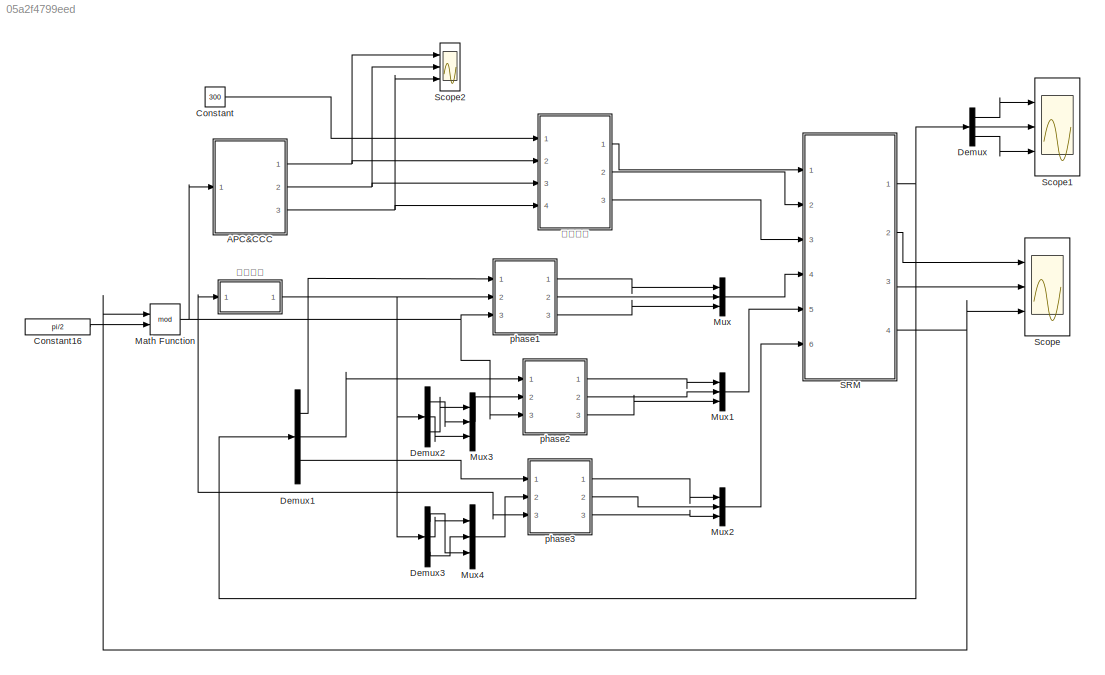
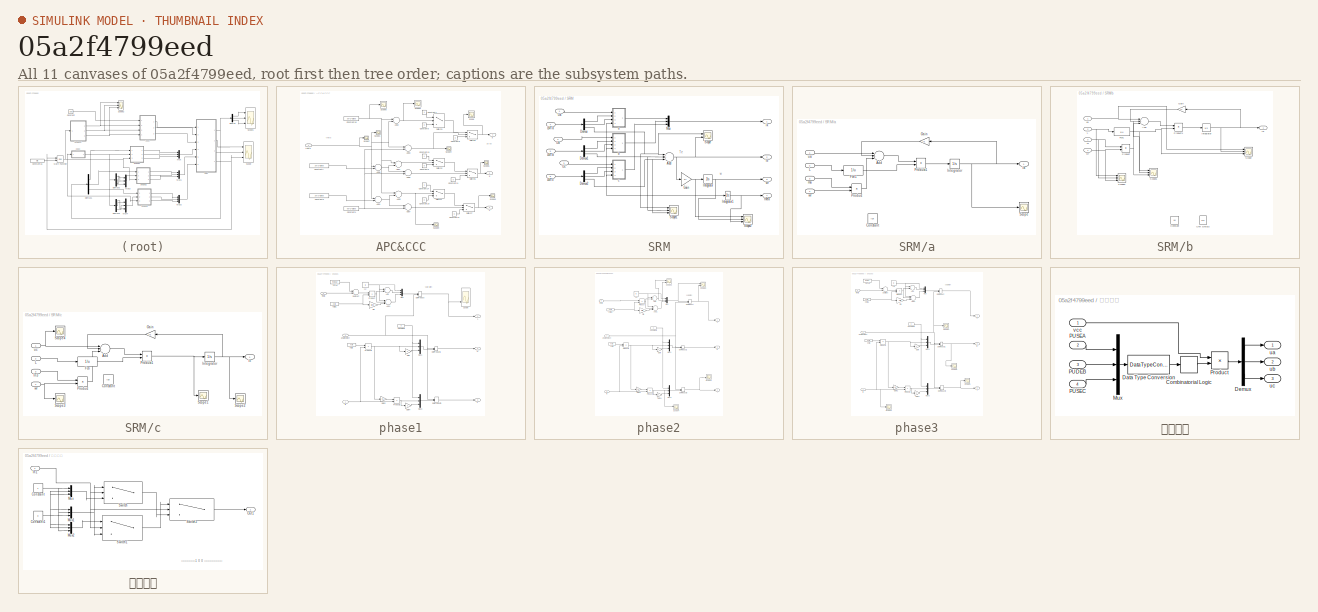
[diagram: thumbnail index - all 11 canvases of the model, root first then tree order]
MODEL slx_05a2f4799eed
KIND model
CONFIG InitFcn = theta0=30*2*pi/360;\nks=1.22;\nis=2;\nlu=0.016;\nrs=1.5;\nlux=1;\nj=0.01;
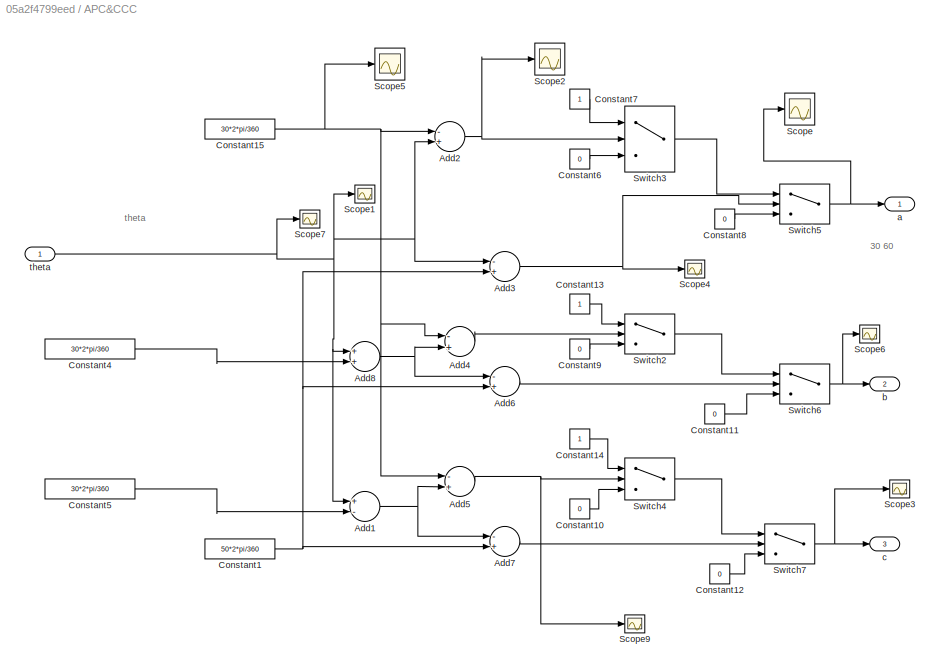
BLOCK [SubSystem] APC&CCC
  FunctionWithSeparateData = off
  MaskHideContents = off
  MinAlgLoopOccurrences = off
  Opaque = off
  Ports = [1, 3]
  PropExecContextOutsideSubsystem = off
  RTWSystemCode = Auto
  RequestExecContextInheritance = off
BLOCK [Sum] APC&CCC/Add1
  InputSameDT = off
  Inputs = +-
  OutDataTypeStr = Inherit: Inherit via internal rule
  Ports = [2, 1]
  SaturateOnIntegerOverflow = off
BLOCK [Sum] APC&CCC/Add2
  InputSameDT = off
  Inputs = -+
  OutDataTypeStr = Inherit: Inherit via internal rule
  Ports = [2, 1]
  SaturateOnIntegerOverflow = off
BLOCK [Sum] APC&CCC/Add3
  InputSameDT = off
  Inputs = -+
  OutDataTypeStr = Inherit: Inherit via internal rule
  Ports = [2, 1]
  SaturateOnIntegerOverflow = off
BLOCK [Sum] APC&CCC/Add4
  InputSameDT = off
  Inputs = -+
  OutDataTypeStr = Inherit: Inherit via internal rule
  Ports = [2, 1]
  SaturateOnIntegerOverflow = off
BLOCK [Sum] APC&CCC/Add5
  InputSameDT = off
  Inputs = -+
  OutDataTypeStr = Inherit: Inherit via internal rule
  Ports = [2, 1]
  SaturateOnIntegerOverflow = off
BLOCK [Sum] APC&CCC/Add6
  InputSameDT = off
  Inputs = -+
  OutDataTypeStr = Inherit: Inherit via internal rule
  Ports = [2, 1]
  SaturateOnIntegerOverflow = off
BLOCK [Sum] APC&CCC/Add7
  InputSameDT = off
  Inputs = -+
  OutDataTypeStr = Inherit: Inherit via internal rule
  Ports = [2, 1]
  SaturateOnIntegerOverflow = off
BLOCK [Sum] APC&CCC/Add8
  InputSameDT = off
  OutDataTypeStr = Inherit: Inherit via internal rule
  Ports = [2, 1]
  SaturateOnIntegerOverflow = off
BLOCK [Constant] APC&CCC/Constant1
  Value = 50*2*pi/360
BLOCK [Constant] APC&CCC/Constant10
  Value = 0
BLOCK [Constant] APC&CCC/Constant11
  Value = 0
BLOCK [Constant] APC&CCC/Constant12
  Value = 0
BLOCK [Constant] APC&CCC/Constant13
BLOCK [Constant] APC&CCC/Constant14
BLOCK [Constant] APC&CCC/Constant15
  Value = 30*2*pi/360
BLOCK [Constant] APC&CCC/Constant4
  Value = 30*2*pi/360
BLOCK [Constant] APC&CCC/Constant5
  Value = 30*2*pi/360
BLOCK [Constant] APC&CCC/Constant6
  Value = 0
BLOCK [Constant] APC&CCC/Constant7
BLOCK [Constant] APC&CCC/Constant8
  Value = 0
BLOCK [Constant] APC&CCC/Constant9
  Value = 0
BLOCK [Scope] APC&CCC/Scope
  DataFormat = StructureWithTime
  Floating = off
  NumInputPorts = 1
  Ports = [1]
  SampleTime = 0
  SaveName = ScopeData3
  ShowLegends = off
  TimeRange = 2
  YMax = 1
  YMin = -1
BLOCK [Scope] APC&CCC/Scope1
  DataFormat = StructureWithTime
  Floating = off
  NumInputPorts = 1
  Ports = [1]
  SampleTime = 0
  SaveName = ScopeData5
  ShowLegends = off
BLOCK [Scope] APC&CCC/Scope2
  DataFormat = StructureWithTime
  Floating = off
  NumInputPorts = 1
  Ports = [1]
  SampleTime = 0
  SaveName = ScopeData7
  ShowLegends = off
  TimeRange = 2
  YMax = 1
  YMin = -1
BLOCK [Scope] APC&CCC/Scope3
  DataFormat = StructureWithTime
  Floating = off
  NumInputPorts = 1
  Ports = [1]
  SampleTime = 0
  SaveName = ScopeData8
  ShowLegends = off
BLOCK [Scope] APC&CCC/Scope4
  DataFormat = StructureWithTime
  Floating = off
  NumInputPorts = 1
  Ports = [1]
  SampleTime = 0
  SaveName = ScopeData9
  ShowLegends = off
BLOCK [Scope] APC&CCC/Scope5
  DataFormat = StructureWithTime
  Floating = off
  NumInputPorts = 1
  Ports = [1]
  SampleTime = 0
  SaveName = ScopeData10
  ShowLegends = off
  TimeRange = 2
  YMax = 1
  YMin = -1
BLOCK [Scope] APC&CCC/Scope6
  DataFormat = StructureWithTime
  Floating = off
  LimitDataPoints = off
  NumInputPorts = 1
  Ports = [1]
  SampleTime = 0
  SaveName = ScopeData11
  ShowLegends = off
BLOCK [Scope] APC&CCC/Scope7
  DataFormat = StructureWithTime
  Floating = off
  LimitDataPoints = off
  NumInputPorts = 1
  Ports = [1]
  SampleTime = 0
  SaveName = ScopeData19
  ShowLegends = off
  YMax = 0.85
  YMin = 0.2
  ZoomMode = xonly
BLOCK [Scope] APC&CCC/Scope9
  DataFormat = StructureWithTime
  Floating = off
  LimitDataPoints = off
  NumInputPorts = 1
  Ports = [1]
  SampleTime = 0
  SaveName = ScopeData21
  ShowLegends = off
  YMax = 0.85
  YMin = 0.2
BLOCK [Switch] APC&CCC/Switch2
  InputSameDT = off
  SaturateOnIntegerOverflow = off
BLOCK [Switch] APC&CCC/Switch3
  InputSameDT = off
  SaturateOnIntegerOverflow = off
BLOCK [Switch] APC&CCC/Switch4
  InputSameDT = off
  SaturateOnIntegerOverflow = off
BLOCK [Switch] APC&CCC/Switch5
  InputSameDT = off
  SaturateOnIntegerOverflow = off
BLOCK [Switch] APC&CCC/Switch6
  InputSameDT = off
  SaturateOnIntegerOverflow = off
BLOCK [Switch] APC&CCC/Switch7
  InputSameDT = off
  SaturateOnIntegerOverflow = off
BLOCK [Outport] APC&CCC/a
  IconDisplay = Port number
BLOCK [Outport] APC&CCC/b
  IconDisplay = Port number
  Port = 2
BLOCK [Outport] APC&CCC/c
  IconDisplay = Port number
  Port = 3
BLOCK [Inport] APC&CCC/theta
  IconDisplay = Port number
BLOCK [Constant] Constant
  Value = 300
BLOCK [Constant] Constant16
  Value = pi/2
BLOCK [Demux] Demux
  DisplayOption = bar
  Outputs = 3
  Ports = [1, 3]
BLOCK [Demux] Demux1
  DisplayOption = bar
  Outputs = 3
  Ports = [1, 3]
BLOCK [Demux] Demux2
  DisplayOption = bar
  Outputs = 3
  Ports = [1, 3]
BLOCK [Demux] Demux3
  DisplayOption = bar
  Outputs = 3
  Ports = [1, 3]
BLOCK [Math] Math Function
  Operator = mod
  Ports = [2, 1]
BLOCK [Mux] Mux
  DisplayOption = bar
  Inputs = 3
  Ports = [3, 1]
BLOCK [Mux] Mux1
  DisplayOption = bar
  Inputs = 3
  Ports = [3, 1]
BLOCK [Mux] Mux2
  DisplayOption = bar
  Inputs = 3
  Ports = [3, 1]
BLOCK [Mux] Mux3
  DisplayOption = bar
  Inputs = 3
  Ports = [3, 1]
BLOCK [Mux] Mux4
  DisplayOption = bar
  Inputs = 3
  Ports = [3, 1]
BLOCK [SubSystem] SRM
  FunctionWithSeparateData = off
  MaskHideContents = off
  MinAlgLoopOccurrences = off
  Opaque = off
  Ports = [6, 4]
  PropExecContextOutsideSubsystem = off
  RTWSystemCode = Auto
  RequestExecContextInheritance = off
BLOCK [Sum] SRM/Add
  InputSameDT = off
  Inputs = +++
  OutDataTypeStr = Inherit: Inherit via internal rule
  Ports = [3, 1]
  SaturateOnIntegerOverflow = off
BLOCK [Demux] SRM/Demux
  DisplayOption = bar
  Outputs = 3
  Ports = [1, 3]
BLOCK [Demux] SRM/Demux1
  DisplayOption = bar
  Outputs = 3
  Ports = [1, 3]
BLOCK [Demux] SRM/Demux2
  DisplayOption = bar
  Outputs = 3
  Ports = [1, 3]
BLOCK [Gain] SRM/Gain
  Gain = 1/j
  OutDataTypeStr = Inherit: Inherit via internal rule
  ParamDataTypeStr = Inherit: Inherit via internal rule
  SaturateOnIntegerOverflow = off
BLOCK [Integrator] SRM/Integrator
  Ports = [1, 1]
BLOCK [Integrator] SRM/Integrator1
  InitialCondition = 5*2*pi/360
  Ports = [1, 1]
BLOCK [Inport] SRM/LMTa
  IconDisplay = Port number
  Port = 4
BLOCK [Inport] SRM/LMTb
  IconDisplay = Port number
  Port = 5
BLOCK [Inport] SRM/LMTc
  IconDisplay = Port number
  Port = 6
BLOCK [Mux] SRM/Mux
  DisplayOption = bar
  Inputs = 3
  Ports = [3, 1]
BLOCK [Scope] SRM/Scope
  DataFormat = StructureWithTime
  Floating = off
  NumInputPorts = 2
  Ports = [2]
  SampleTime = 0
  ShowLegends = off
  YMax = 5~5
  YMin = -5~-5
BLOCK [Scope] SRM/Scope1
  DataFormat = StructureWithTime
  Floating = off
  NumInputPorts = 3
  Ports = [3]
  SampleTime = 0
  SaveName = ScopeData22
  ShowLegends = off
  YMax = 5~5~5
  YMin = -5~-5~-5
BLOCK [Scope] SRM/Scope2
  DataFormat = StructureWithTime
  Floating = off
  LimitDataPoints = off
  NumInputPorts = 3
  Ports = [3]
  SampleTime = 0
  SaveName = ScopeData29
  ShowLegends = off
  YMax = 5~5~5
  YMin = -5~-5~-5
BLOCK [Inport] SRM/Ua
  IconDisplay = Port number
BLOCK [Inport] SRM/Ub
  IconDisplay = Port number
  Port = 2
BLOCK [Inport] SRM/Uc
  IconDisplay = Port number
  Port = 3
BLOCK [SubSystem] SRM/a
  FunctionWithSeparateData = off
  MaskHideContents = off
  MinAlgLoopOccurrences = off
  Opaque = off
  Ports = [4, 1]
  PropExecContextOutsideSubsystem = off
  RTWSystemCode = Auto
  RequestExecContextInheritance = off
BLOCK [Sum] SRM/a/Add
  InputSameDT = off
  Inputs = +--
  OutDataTypeStr = Inherit: Inherit via internal rule
  Ports = [3, 1]
  SaturateOnIntegerOverflow = off
BLOCK [Constant] SRM/a/Constant
  Value = lux
BLOCK [Fcn] SRM/a/Fcn1
  Expr = 1/u
BLOCK [Gain] SRM/a/Gain
  Gain = rs
  OutDataTypeStr = Inherit: Inherit via internal rule
  ParamDataTypeStr = Inherit: Inherit via internal rule
  SaturateOnIntegerOverflow = off
BLOCK [Integrator] SRM/a/Integrator
  Ports = [1, 1]
BLOCK [Inport] SRM/a/L 
  IconDisplay = Port number
  Port = 2
BLOCK [Product] SRM/a/Product
  InputSameDT = off
  OutDataTypeStr = Inherit: Inherit via internal rule
  Ports = [2, 1]
  RndMeth = Floor
  SaturateOnIntegerOverflow = off
BLOCK [Product] SRM/a/Product1
  InputSameDT = off
  OutDataTypeStr = Inherit: Inherit via internal rule
  Ports = [2, 1]
  RndMeth = Floor
  SaturateOnIntegerOverflow = off
BLOCK [Scope] SRM/a/Scope
  DataFormat = StructureWithTime
  Floating = off
  NumInputPorts = 1
  Ports = [1]
  SampleTime = 0
  SaveName = ScopeData2
  ShowLegends = off
BLOCK [Outport] SRM/a/ia
  IconDisplay = Port number
BLOCK [Inport] SRM/a/ma
  IconDisplay = Port number
  Port = 3
BLOCK [Inport] SRM/a/ua
  IconDisplay = Port number
BLOCK [Inport] SRM/a/wr
  IconDisplay = Port number
  Port = 4
BLOCK [SubSystem] SRM/b
  FunctionWithSeparateData = off
  MaskHideContents = off
  MinAlgLoopOccurrences = off
  Opaque = off
  Ports = [4, 1]
  PropExecContextOutsideSubsystem = off
  RTWSystemCode = Auto
  RequestExecContextInheritance = off
BLOCK [Sum] SRM/b/Add
  InputSameDT = off
  Inputs = +--
  OutDataTypeStr = Inherit: Inherit via internal rule
  Ports = [3, 1]
  SaturateOnIntegerOverflow = off
BLOCK [Constant] SRM/b/Constant
  Value = lux
BLOCK [Fcn] SRM/b/Fcn1
  Expr = 1/u
BLOCK [Gain] SRM/b/Gain
  Gain = rs
  OutDataTypeStr = Inherit: Inherit via internal rule
  ParamDataTypeStr = Inherit: Inherit via internal rule
  SaturateOnIntegerOverflow = off
BLOCK [Integrator] SRM/b/Integrator
  Ports = [1, 1]
BLOCK [Inport] SRM/b/L
  IconDisplay = Port number
  Port = 2
BLOCK [Inport] SRM/b/M
  IconDisplay = Port number
  Port = 3
BLOCK [Product] SRM/b/Product
  InputSameDT = off
  OutDataTypeStr = Inherit: Inherit via internal rule
  Ports = [2, 1]
  RndMeth = Floor
  SaturateOnIntegerOverflow = off
BLOCK [Product] SRM/b/Product1
  InputSameDT = off
  OutDataTypeStr = Inherit: Inherit via internal rule
  Ports = [2, 1]
  RndMeth = Floor
  SaturateOnIntegerOverflow = off
BLOCK [Scope] SRM/b/Scope
  DataFormat = StructureWithTime
  Floating = off
  LimitDataPoints = off
  NumInputPorts = 3
  Ports = [3]
  SampleTime = 0
  SaveName = ScopeData18
  ShowLegends = off
  YMax = 5~5~5
  YMin = -5~-5~-5
BLOCK [Scope] SRM/b/Scope1
  DataFormat = StructureWithTime
  Floating = off
  LimitDataPoints = off
  NumInputPorts = 3
  Ports = [3]
  SampleTime = 0
  SaveName = ScopeData28
  ShowLegends = off
  YMax = 5~5~5
  YMin = -5~-5~-5
BLOCK [Scope] SRM/b/Scope2
  DataFormat = StructureWithTime
  Floating = off
  LimitDataPoints = off
  NumInputPorts = 3
  Ports = [3]
  SampleTime = 0
  SaveName = ScopeData31
  ShowLegends = off
  YMax = 5~5~5
  YMin = -5~-5~-5
BLOCK [UnitDelay] SRM/b/Unit Delay2
  SampleTime = -1
BLOCK [Outport] SRM/b/ib 
  IconDisplay = Port number
BLOCK [Inport] SRM/b/ua
  IconDisplay = Port number
BLOCK [Inport] SRM/b/wr 
  IconDisplay = Port number
  Port = 4
BLOCK [SubSystem] SRM/c
  FunctionWithSeparateData = off
  MaskHideContents = off
  MinAlgLoopOccurrences = off
  Opaque = off
  Ports = [4, 1]
  PropExecContextOutsideSubsystem = off
  RTWSystemCode = Auto
  RequestExecContextInheritance = off
BLOCK [Sum] SRM/c/Add
  InputSameDT = off
  Inputs = +--
  OutDataTypeStr = Inherit: Inherit via internal rule
  Ports = [3, 1]
  SaturateOnIntegerOverflow = off
BLOCK [Constant] SRM/c/Constant
  Value = lux
BLOCK [Fcn] SRM/c/Fcn
  Expr = 1/u
BLOCK [Gain] SRM/c/Gain
  Gain = rs
  OutDataTypeStr = Inherit: Inherit via internal rule
  ParamDataTypeStr = Inherit: Inherit via internal rule
  SaturateOnIntegerOverflow = off
BLOCK [Inport] SRM/c/In3
  IconDisplay = Port number
  Port = 3
BLOCK [Integrator] SRM/c/Integrator
  Ports = [1, 1]
BLOCK [Inport] SRM/c/L
  IconDisplay = Port number
  Port = 2
BLOCK [Product] SRM/c/Product
  InputSameDT = off
  OutDataTypeStr = Inherit: Inherit via internal rule
  Ports = [2, 1]
  RndMeth = Floor
  SaturateOnIntegerOverflow = off
BLOCK [Product] SRM/c/Product1
  InputSameDT = off
  OutDataTypeStr = Inherit: Inherit via internal rule
  Ports = [2, 1]
  RndMeth = Floor
  SaturateOnIntegerOverflow = off
BLOCK [Scope] SRM/c/Scope1
  DataFormat = StructureWithTime
  Floating = off
  NumInputPorts = 1
  Ports = [1]
  SampleTime = 0
  SaveName = ScopeData13
  ShowLegends = off
  TimeRange = 2
  YMax = 1
  YMin = -1
BLOCK [Scope] SRM/c/Scope2
  DataFormat = StructureWithTime
  Floating = off
  NumInputPorts = 1
  Ports = [1]
  SampleTime = 0
  SaveName = ScopeData12
  ShowLegends = off
  TimeRange = 2
  YMax = 1
  YMin = -1
BLOCK [Scope] SRM/c/Scope3
  DataFormat = StructureWithTime
  Floating = off
  NumInputPorts = 1
  Ports = [1]
  SampleTime = 0
  SaveName = ScopeData14
  ShowLegends = off
  TimeRange = 2
  YMax = 1
  YMin = -1
BLOCK [Scope] SRM/c/Scope4
  DataFormat = StructureWithTime
  Floating = off
  NumInputPorts = 1
  Ports = [1]
  SampleTime = 0
  SaveName = ScopeData26
  ShowLegends = off
  TimeRange = 2
  YMax = 1
  YMin = -1
BLOCK [Outport] SRM/c/ic
  IconDisplay = Port number
BLOCK [Inport] SRM/c/uc 
  IconDisplay = Port number
BLOCK [Inport] SRM/c/wr
  IconDisplay = Port number
  Port = 4
BLOCK [Outport] SRM/ik
  IconDisplay = Port number
BLOCK [Outport] SRM/te
  IconDisplay = Port number
  Port = 2
BLOCK [Outport] SRM/theta
  IconDisplay = Port number
  Port = 4
BLOCK [Outport] SRM/wr
  IconDisplay = Port number
  Port = 3
BLOCK [Scope] Scope
  DataFormat = StructureWithTime
  Floating = off
  LimitDataPoints = off
  NumInputPorts = 3
  Ports = [3]
  SampleTime = 0
  SaveName = ScopeData1
  ShowLegends = off
  TimeRange = 0.2
  YMax = 200~30~3
  YMin = -100~-10~-1
BLOCK [Scope] Scope1
  DataFormat = StructureWithTime
  Floating = off
  LimitDataPoints = off
  NumInputPorts = 3
  Ports = [3]
  SampleTime = 0
  SaveName = ScopeData6
  ShowLegends = off
  YMax = 5~5~5
  YMin = -5~-5~-5
BLOCK [Scope] Scope2
  DataFormat = StructureWithTime
  Floating = off
  LimitDataPoints = off
  NumInputPorts = 3
  Ports = [3]
  SampleTime = 0
  SaveName = ScopeData27
  ShowLegends = off
  TimeRange = 0.2
  YMax = 200~30~3
  YMin = -100~-10~-1
BLOCK [SubSystem] phase1
  FunctionWithSeparateData = off
  MaskHideContents = off
  MinAlgLoopOccurrences = off
  Opaque = off
  Ports = [3, 3]
  PropExecContextOutsideSubsystem = off
  RTWSystemCode = Auto
  RequestExecContextInheritance = off
BLOCK [Sum] phase1/Add
  InputSameDT = off
  OutDataTypeStr = Inherit: Inherit via internal rule
  Ports = [2, 1]
  SaturateOnIntegerOverflow = off
BLOCK [Sum] phase1/Add1
  InputSameDT = off
  Inputs = +-+
  OutDataTypeStr = Inherit: Inherit via internal rule
  Ports = [3, 1]
  SaturateOnIntegerOverflow = off
BLOCK [Constant] phase1/Constant2
  Value = 0
BLOCK [DotProduct] phase1/Dot Product
  OutDataTypeStr = Inherit: Inherit via internal rule
BLOCK [DotProduct] phase1/Dot Product1
  OutDataTypeStr = Inherit: Inherit via internal rule
BLOCK [DotProduct] phase1/Dot Product3
  OutDataTypeStr = Inherit: Inherit via internal rule
BLOCK [Gain] phase1/Gain
  Gain = -1
  OutDataTypeStr = Inherit: Inherit via internal rule
  ParamDataTypeStr = Inherit: Inherit via internal rule
  SaturateOnIntegerOverflow = off
BLOCK [Gain] phase1/Gain2
  Gain = 0.5
  OutDataTypeStr = Inherit: Inherit via internal rule
  ParamDataTypeStr = Inherit: Inherit via internal rule
  SaturateOnIntegerOverflow = off
BLOCK [Gain] phase1/Gain4
  Gain = -1
  OutDataTypeStr = Inherit: Inherit via internal rule
  ParamDataTypeStr = Inherit: Inherit via internal rule
  SaturateOnIntegerOverflow = off
BLOCK [Constant] phase1/KS//IS
  Value = ks/is
BLOCK [Constant] phase1/KS//IS1
  Value = ks/is
BLOCK [Outport] phase1/L 
  IconDisplay = Port number
BLOCK [Constant] phase1/LU
  Value = lu
BLOCK [Outport] phase1/M
  IconDisplay = Port number
  Port = 2
BLOCK [Mux] phase1/Mux
  DisplayOption = bar
  Inputs = 3
  Ports = [3, 1]
BLOCK [Mux] phase1/Mux1
  DisplayOption = bar
  Inputs = 3
  Ports = [3, 1]
BLOCK [Mux] phase1/Mux3
  DisplayOption = bar
  Inputs = 3
  Ports = [3, 1]
BLOCK [Gain] phase1/PI//3
  Gain = pi/3
  OutDataTypeStr = Inherit: Inherit via internal rule
  ParamDataTypeStr = Inherit: Inherit via internal rule
  SaturateOnIntegerOverflow = off
BLOCK [Product] phase1/Product
  InputSameDT = off
  OutDataTypeStr = Inherit: Inherit via internal rule
  Ports = [2, 1]
  RndMeth = Floor
  SaturateOnIntegerOverflow = off
BLOCK [Product] phase1/Product2
  InputSameDT = off
  OutDataTypeStr = Inherit: Inherit via internal rule
  Ports = [2, 1]
  RndMeth = Floor
  SaturateOnIntegerOverflow = off
BLOCK [Product] phase1/Product3
  InputSameDT = off
  OutDataTypeStr = Inherit: Inherit via internal rule
  Ports = [2, 1]
  RndMeth = Floor
  SaturateOnIntegerOverflow = off
BLOCK [Scope] phase1/Scope
  DataFormat = StructureWithTime
  Floating = off
  LimitDataPoints = off
  NumInputPorts = 3
  Ports = [3]
  SampleTime = 0
  SaveName = ScopeData4
  ShowLegends = off
  TimeRange = 0.2
  YMax = 200~30~3
  YMin = -100~-10~-1
BLOCK [Sum] phase1/Subtract
  InputSameDT = off
  Inputs = -+
  OutDataTypeStr = Inherit: Inherit via internal rule
  Ports = [2, 1]
  SaturateOnIntegerOverflow = off
BLOCK [Outport] phase1/T
  IconDisplay = Port number
  Port = 3
BLOCK [Constant] phase1/TETA0
  Value = theta0/2
BLOCK [Inport] phase1/angleselect 
  IconDisplay = Port number
  Port = 2
BLOCK [Inport] phase1/ik
  IconDisplay = Port number
BLOCK [Inport] phase1/theta
  IconDisplay = Port number
  Port = 3
BLOCK [SubSystem] phase2
  FunctionWithSeparateData = off
  MaskHideContents = off
  MinAlgLoopOccurrences = off
  Opaque = off
  Ports = [3, 3]
  PropExecContextOutsideSubsystem = off
  RTWSystemCode = Auto
  RequestExecContextInheritance = off
BLOCK [Sum] phase2/Add
  InputSameDT = off
  OutDataTypeStr = Inherit: Inherit via internal rule
  Ports = [2, 1]
  SaturateOnIntegerOverflow = off
BLOCK [Sum] phase2/Add1
  InputSameDT = off
  Inputs = +-+
  OutDataTypeStr = Inherit: Inherit via internal rule
  Ports = [3, 1]
  SaturateOnIntegerOverflow = off
BLOCK [Constant] phase2/Constant2
  Value = 0
BLOCK [DotProduct] phase2/Dot Product
  OutDataTypeStr = Inherit: Inherit via internal rule
BLOCK [DotProduct] phase2/Dot Product1
  OutDataTypeStr = Inherit: Inherit via internal rule
BLOCK [DotProduct] phase2/Dot Product3
  OutDataTypeStr = Inherit: Inherit via internal rule
BLOCK [Gain] phase2/Gain
  Gain = -1
  OutDataTypeStr = Inherit: Inherit via internal rule
  ParamDataTypeStr = Inherit: Inherit via internal rule
  SaturateOnIntegerOverflow = off
BLOCK [Gain] phase2/Gain2
  Gain = 0.5
  OutDataTypeStr = Inherit: Inherit via internal rule
  ParamDataTypeStr = Inherit: Inherit via internal rule
  SaturateOnIntegerOverflow = off
BLOCK [Gain] phase2/Gain4
  Gain = -1
  OutDataTypeStr = Inherit: Inherit via internal rule
  ParamDataTypeStr = Inherit: Inherit via internal rule
  SaturateOnIntegerOverflow = off
BLOCK [Constant] phase2/KS//IS
  Value = ks/is
BLOCK [Constant] phase2/KS//IS1
  Value = ks/is
BLOCK [Outport] phase2/L 
  IconDisplay = Port number
BLOCK [Constant] phase2/LU
  Value = lu
BLOCK [Outport] phase2/M
  IconDisplay = Port number
  Port = 2
BLOCK [Mux] phase2/Mux
  DisplayOption = bar
  Inputs = 3
  Ports = [3, 1]
BLOCK [Mux] phase2/Mux1
  DisplayOption = bar
  Inputs = 3
  Ports = [3, 1]
BLOCK [Mux] phase2/Mux3
  DisplayOption = bar
  Inputs = 3
  Ports = [3, 1]
BLOCK [Gain] phase2/PI//3
  Gain = pi/3
  OutDataTypeStr = Inherit: Inherit via internal rule
  ParamDataTypeStr = Inherit: Inherit via internal rule
  SaturateOnIntegerOverflow = off
BLOCK [Product] phase2/Product
  InputSameDT = off
  OutDataTypeStr = Inherit: Inherit via internal rule
  Ports = [2, 1]
  RndMeth = Floor
  SaturateOnIntegerOverflow = off
BLOCK [Product] phase2/Product2
  InputSameDT = off
  OutDataTypeStr = Inherit: Inherit via internal rule
  Ports = [2, 1]
  RndMeth = Floor
  SaturateOnIntegerOverflow = off
BLOCK [Product] phase2/Product3
  InputSameDT = off
  OutDataTypeStr = Inherit: Inherit via internal rule
  Ports = [2, 1]
  RndMeth = Floor
  SaturateOnIntegerOverflow = off
BLOCK [Scope] phase2/Scope1
  DataFormat = StructureWithTime
  Floating = off
  LimitDataPoints = off
  NumInputPorts = 2
  Ports = [2]
  SampleTime = 0
  SaveName = ScopeData24
  ShowLegends = off
  YMax = 5~5
  YMin = -5~-5
  ZoomMode = xonly
BLOCK [Scope] phase2/Scope2
  DataFormat = StructureWithTime
  Floating = off
  LimitDataPoints = off
  NumInputPorts = 2
  Ports = [2]
  SampleTime = 0
  SaveName = ScopeData15
  ShowLegends = off
  YMax = 5~5
  YMin = -5~-5
BLOCK [Scope] phase2/Scope3
  DataFormat = StructureWithTime
  Floating = off
  LimitDataPoints = off
  NumInputPorts = 2
  Ports = [2]
  SampleTime = 0
  SaveName = ScopeData30
  ShowLegends = off
  YMax = 5~5
  YMin = -5~-5
BLOCK [Scope] phase2/Scope4
  DataFormat = StructureWithTime
  Floating = off
  LimitDataPoints = off
  NumInputPorts = 2
  Ports = [2]
  SampleTime = 0
  SaveName = ScopeData20
  ShowLegends = off
  YMax = 5~5
  YMin = -5~-5
  ZoomMode = xonly
BLOCK [Outport] phase2/T
  IconDisplay = Port number
  Port = 3
BLOCK [Inport] phase2/angleselect 
  IconDisplay = Port number
  Port = 2
BLOCK [Inport] phase2/ik
  IconDisplay = Port number
BLOCK [Inport] phase2/theta
  IconDisplay = Port number
  Port = 3
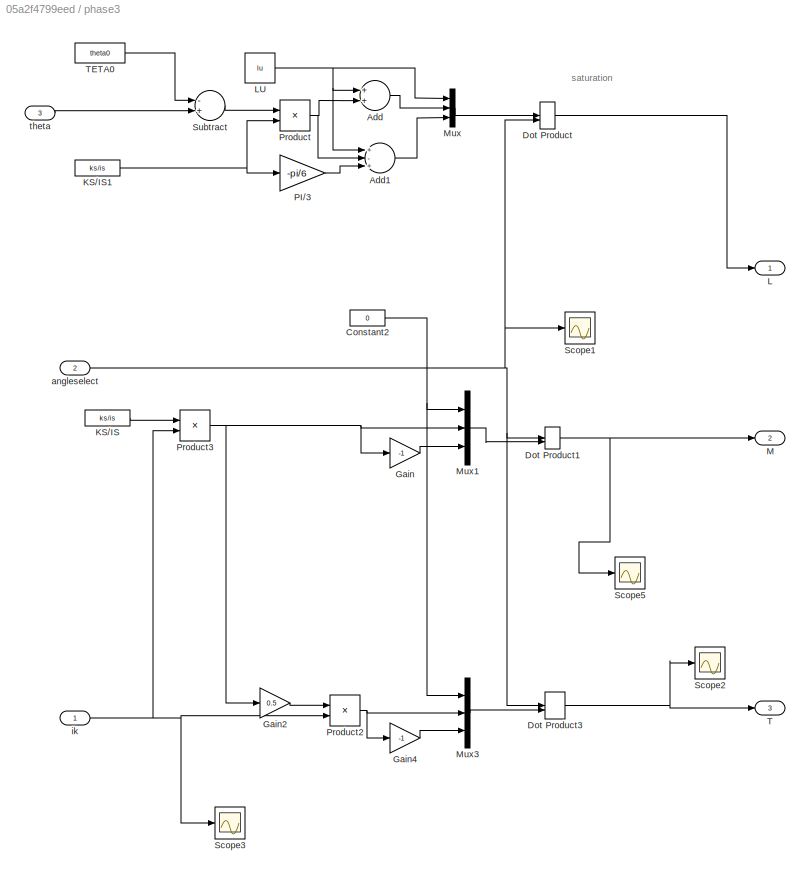
BLOCK [SubSystem] phase3
  FunctionWithSeparateData = off
  MaskHideContents = off
  MinAlgLoopOccurrences = off
  Opaque = off
  Ports = [3, 3]
  PropExecContextOutsideSubsystem = off
  RTWSystemCode = Auto
  RequestExecContextInheritance = off
BLOCK [Sum] phase3/Add
  InputSameDT = off
  OutDataTypeStr = Inherit: Inherit via internal rule
  Ports = [2, 1]
  SaturateOnIntegerOverflow = off
BLOCK [Sum] phase3/Add1
  InputSameDT = off
  Inputs = +-+
  OutDataTypeStr = Inherit: Inherit via internal rule
  Ports = [3, 1]
  SaturateOnIntegerOverflow = off
BLOCK [Constant] phase3/Constant2
  Value = 0
BLOCK [DotProduct] phase3/Dot Product
  OutDataTypeStr = Inherit: Inherit via internal rule
BLOCK [DotProduct] phase3/Dot Product1
  OutDataTypeStr = Inherit: Inherit via internal rule
BLOCK [DotProduct] phase3/Dot Product3
  OutDataTypeStr = Inherit: Inherit via internal rule
BLOCK [Gain] phase3/Gain
  Gain = -1
  OutDataTypeStr = Inherit: Inherit via internal rule
  ParamDataTypeStr = Inherit: Inherit via internal rule
  SaturateOnIntegerOverflow = off
BLOCK [Gain] phase3/Gain2
  Gain = 0.5
  OutDataTypeStr = Inherit: Inherit via internal rule
  ParamDataTypeStr = Inherit: Inherit via internal rule
  SaturateOnIntegerOverflow = off
BLOCK [Gain] phase3/Gain4
  Gain = -1
  OutDataTypeStr = Inherit: Inherit via internal rule
  ParamDataTypeStr = Inherit: Inherit via internal rule
  SaturateOnIntegerOverflow = off
BLOCK [Constant] phase3/KS//IS
  Value = ks/is
BLOCK [Constant] phase3/KS//IS1
  Value = ks/is
BLOCK [Outport] phase3/L 
  IconDisplay = Port number
BLOCK [Constant] phase3/LU
  Value = lu
BLOCK [Outport] phase3/M
  IconDisplay = Port number
  Port = 2
BLOCK [Mux] phase3/Mux
  DisplayOption = bar
  Inputs = 3
  Ports = [3, 1]
BLOCK [Mux] phase3/Mux1
  DisplayOption = bar
  Inputs = 3
  Ports = [3, 1]
BLOCK [Mux] phase3/Mux3
  DisplayOption = bar
  Inputs = 3
  Ports = [3, 1]
BLOCK [Gain] phase3/PI//3
  Gain = -pi/6
  OutDataTypeStr = Inherit: Inherit via internal rule
  ParamDataTypeStr = Inherit: Inherit via internal rule
  SaturateOnIntegerOverflow = off
BLOCK [Product] phase3/Product
  InputSameDT = off
  OutDataTypeStr = Inherit: Inherit via internal rule
  Ports = [2, 1]
  RndMeth = Floor
  SaturateOnIntegerOverflow = off
BLOCK [Product] phase3/Product2
  InputSameDT = off
  OutDataTypeStr = Inherit: Inherit via internal rule
  Ports = [2, 1]
  RndMeth = Floor
  SaturateOnIntegerOverflow = off
BLOCK [Product] phase3/Product3
  InputSameDT = off
  OutDataTypeStr = Inherit: Inherit via internal rule
  Ports = [2, 1]
  RndMeth = Floor
  SaturateOnIntegerOverflow = off
BLOCK [Scope] phase3/Scope1
  DataFormat = StructureWithTime
  Floating = off
  NumInputPorts = 1
  Ports = [1]
  SampleTime = 0
  SaveName = ScopeData17
  ShowLegends = off
  TimeRange = 2
  YMax = 1
  YMin = -1
BLOCK [Scope] phase3/Scope2
  DataFormat = StructureWithTime
  Floating = off
  LimitDataPoints = off
  NumInputPorts = 1
  Ports = [1]
  SampleTime = 0
  SaveName = ScopeData23
  ShowLegends = off
  TimeRange = 2
  YMax = 1
  YMin = -1
BLOCK [Scope] phase3/Scope3
  DataFormat = StructureWithTime
  Floating = off
  LimitDataPoints = off
  NumInputPorts = 1
  Ports = [1]
  SampleTime = 0
  SaveName = ScopeData25
  ShowLegends = off
  TimeRange = 2
  YMax = 1
  YMin = -1
BLOCK [Scope] phase3/Scope5
  DataFormat = StructureWithTime
  Floating = off
  NumInputPorts = 1
  Ports = [1]
  SampleTime = 0
  SaveName = ScopeData16
  ShowLegends = off
  TimeRange = 2
  YMax = 1
  YMin = -1
BLOCK [Sum] phase3/Subtract
  InputSameDT = off
  Inputs = -+
  OutDataTypeStr = Inherit: Inherit via internal rule
  Ports = [2, 1]
  SaturateOnIntegerOverflow = off
BLOCK [Outport] phase3/T
  IconDisplay = Port number
  Port = 3
BLOCK [Constant] phase3/TETA0
  Value = theta0
BLOCK [Inport] phase3/angleselect 
  IconDisplay = Port number
  Port = 2
BLOCK [Inport] phase3/ik
  IconDisplay = Port number
BLOCK [Inport] phase3/theta
  IconDisplay = Port number
  Port = 3
BLOCK [SubSystem] 功率变换
  FunctionWithSeparateData = off
  MaskHideContents = off
  MinAlgLoopOccurrences = off
  Opaque = off
  Ports = [4, 3]
  PropExecContextOutsideSubsystem = off
  RTWSystemCode = Auto
  RequestExecContextInheritance = off
BLOCK [CombinatorialLogic] 功率变换/Combinatorial Logic
  TruthTable = [0 0 0 ;0 0 1;0 1 0;0 1 1;1 0 0;1 0 1;1 1 0;1 1 1]
BLOCK [DataTypeConversion] 功率变换/Data Type Conversion
  OutDataTypeStr = boolean
  RndMeth = Floor
  SaturateOnIntegerOverflow = off
BLOCK [Demux] 功率变换/Demux
  DisplayOption = bar
  Outputs = 3
  Ports = [1, 3]
BLOCK [Mux] 功率变换/Mux
  DisplayOption = bar
  Inputs = 3
  Ports = [3, 1]
BLOCK [Inport] 功率变换/PUDEB
  IconDisplay = Port number
  Port = 3
BLOCK [Inport] 功率变换/PUSEA
  IconDisplay = Port number
  Port = 2
BLOCK [Inport] 功率变换/PUSEC
  IconDisplay = Port number
  Port = 4
BLOCK [Product] 功率变换/Product
  InputSameDT = off
  OutDataTypeStr = Inherit: Inherit via internal rule
  Ports = [2, 1]
  RndMeth = Floor
  SaturateOnIntegerOverflow = off
BLOCK [Outport] 功率变换/ua
  IconDisplay = Port number
BLOCK [Outport] 功率变换/ub
  IconDisplay = Port number
  Port = 2
BLOCK [Outport] 功率变换/uc
  IconDisplay = Port number
  Port = 3
BLOCK [Inport] 功率变换/vcc
  IconDisplay = Port number
BLOCK [SubSystem] 转角选择
  FunctionWithSeparateData = off
  MaskHideContents = off
  MinAlgLoopOccurrences = off
  Opaque = off
  Ports = [1, 1]
  PropExecContextOutsideSubsystem = off
  RTWSystemCode = Auto
  RequestExecContextInheritance = off
BLOCK [Constant] 转角选择/Constant
BLOCK [Constant] 转角选择/Constant1
  Value = 0
BLOCK [Inport] 转角选择/In1
  IconDisplay = Port number
BLOCK [Mux] 转角选择/Mux
  DisplayOption = bar
  Inputs = 3
  Ports = [3, 1]
BLOCK [Mux] 转角选择/Mux1
  DisplayOption = bar
  Inputs = 3
  Ports = [3, 1]
BLOCK [Mux] 转角选择/Mux2
  DisplayOption = bar
  Inputs = 3
  Ports = [3, 1]
BLOCK [Outport] 转角选择/Out1
  IconDisplay = Port number
BLOCK [Switch] 转角选择/Switch
  InputSameDT = off
  SaturateOnIntegerOverflow = off
  Threshold = pi/6
BLOCK [Switch] 转角选择/Switch1
  InputSameDT = off
  SaturateOnIntegerOverflow = off
  Threshold = pi/3
BLOCK [Switch] 转角选择/Switch2
  InputSameDT = off
  SaturateOnIntegerOverflow = off
  Threshold = pi/3
ANNOTATION APC&CCC: 30 60
ANNOTATION APC&CCC: theta
ANNOTATION SRM: Te
ANNOTATION SRM: w
ANNOTATION phase1: saturation
ANNOTATION phase2: saturation
ANNOTATION phase3: saturation
ANNOTATION 转角选择: 根据转角，输出1 0 0 等，从而计算电感等
NET APC&CCC/Add1:1 -> APC&CCC/Add5:2, APC&CCC/Add7:1
NET APC&CCC/Add2:1 -> APC&CCC/Scope2:1, APC&CCC/Switch3:2
NET APC&CCC/Add3:1 -> APC&CCC/Scope4:1, APC&CCC/Switch5:2
LINE APC&CCC/Add4:1 -> APC&CCC/Switch2:2
NET APC&CCC/Add5:1 -> APC&CCC/Scope9:1, APC&CCC/Switch4:2
LINE APC&CCC/Add6:1 -> APC&CCC/Switch6:2
LINE APC&CCC/Add7:1 -> APC&CCC/Switch7:2
NET APC&CCC/Add8:1 -> APC&CCC/Add4:2, APC&CCC/Add6:1
LINE APC&CCC/Constant10:1 -> APC&CCC/Switch4:3
LINE APC&CCC/Constant11:1 -> APC&CCC/Switch6:3
LINE APC&CCC/Constant12:1 -> APC&CCC/Switch7:3
LINE APC&CCC/Constant13:1 -> APC&CCC/Switch2:1
LINE APC&CCC/Constant14:1 -> APC&CCC/Switch4:1
NET APC&CCC/Constant15:1 -> APC&CCC/Add2:1, APC&CCC/Add4:1, APC&CCC/Add5:1, APC&CCC/Scope5:1
NET APC&CCC/Constant1:1 -> APC&CCC/Add3:2, APC&CCC/Add6:2, APC&CCC/Add7:2
LINE APC&CCC/Constant4:1 -> APC&CCC/Add8:2
LINE APC&CCC/Constant5:1 -> APC&CCC/Add1:2
LINE APC&CCC/Constant6:1 -> APC&CCC/Switch3:3
LINE APC&CCC/Constant7:1 -> APC&CCC/Switch3:1
LINE APC&CCC/Constant8:1 -> APC&CCC/Switch5:3
LINE APC&CCC/Constant9:1 -> APC&CCC/Switch2:3
LINE APC&CCC/Switch2:1 -> APC&CCC/Switch6:1
LINE APC&CCC/Switch3:1 -> APC&CCC/Switch5:1
LINE APC&CCC/Switch4:1 -> APC&CCC/Switch7:1
NET APC&CCC/Switch5:1 -> APC&CCC/Scope:1, APC&CCC/a:1
NET APC&CCC/Switch6:1 -> APC&CCC/Scope6:1, APC&CCC/b:1
NET APC&CCC/Switch7:1 -> APC&CCC/Scope3:1, APC&CCC/c:1
NET APC&CCC/theta:1 -> APC&CCC/Add1:1, APC&CCC/Add2:2, APC&CCC/Add3:1, APC&CCC/Add8:1, APC&CCC/Scope1:1, APC&CCC/Scope7:1
NET APC&CCC:1 -> Scope2:1, 功率变换:2
NET APC&CCC:2 -> Scope2:2, 功率变换:3
NET APC&CCC:3 -> Scope2:3, 功率变换:4
LINE Constant16:1 -> Math Function:2
LINE Constant:1 -> 功率变换:1
LINE Demux1:1 -> phase1:1
LINE Demux1:2 -> phase2:1
LINE Demux1:3 -> phase3:1
LINE Demux2:1 -> Mux3:2
LINE Demux2:2 -> Mux3:3
LINE Demux2:3 -> Mux3:1
LINE Demux3:1 -> Mux4:3
LINE Demux3:2 -> Mux4:1
LINE Demux3:3 -> Mux4:2
LINE Demux:1 -> Scope1:1
LINE Demux:2 -> Scope1:2
LINE Demux:3 -> Scope1:3
NET Math Function:1 -> APC&CCC:1, phase1:3, phase2:3, phase3:3, 转角选择:1
LINE Mux1:1 -> SRM:5
LINE Mux2:1 -> SRM:6
LINE Mux3:1 -> phase2:2
LINE Mux4:1 -> phase3:2
LINE Mux:1 -> SRM:4
NET SRM/Add:1 -> SRM/Gain:1, SRM/Scope:2, SRM/te:1
LINE SRM/Demux1:1 -> SRM/b:2
LINE SRM/Demux1:2 -> SRM/b:3
NET SRM/Demux1:3 -> SRM/Add:2, SRM/Scope1:2
LINE SRM/Demux2:1 -> SRM/c:2
LINE SRM/Demux2:2 -> SRM/c:3
NET SRM/Demux2:3 -> SRM/Add:3, SRM/Scope1:3
LINE SRM/Demux:1 -> SRM/a:2
LINE SRM/Demux:2 -> SRM/a:3
NET SRM/Demux:3 -> SRM/Add:1, SRM/Scope1:1, SRM/Scope:1
NET SRM/Gain:1 -> SRM/Integrator:1, SRM/Scope2:1
NET SRM/Integrator1:1 -> SRM/Scope2:3, SRM/theta:1
NET SRM/Integrator:1 -> SRM/Integrator1:1, SRM/Scope2:2, SRM/a:4, SRM/b:4, SRM/c:4, SRM/wr:1
LINE SRM/LMTa:1 -> SRM/Demux:1
LINE SRM/LMTb:1 -> SRM/Demux1:1
LINE SRM/LMTc:1 -> SRM/Demux2:1
LINE SRM/Mux:1 -> SRM/ik:1
LINE SRM/Ua:1 -> SRM/a:1
LINE SRM/Ub:1 -> SRM/b:1
LINE SRM/Uc:1 -> SRM/c:1
LINE SRM/a/Add:1 -> SRM/a/Product1:1
LINE SRM/a/Fcn1:1 -> SRM/a/Product1:2
LINE SRM/a/Gain:1 -> SRM/a/Add:2
NET SRM/a/Integrator:1 -> SRM/a/Gain:1, SRM/a/Scope:1, SRM/a/ia:1
LINE SRM/a/L :1 -> SRM/a/Fcn1:1
LINE SRM/a/Product1:1 -> SRM/a/Integrator:1
LINE SRM/a/Product:1 -> SRM/a/Add:3
LINE SRM/a/ma:1 -> SRM/a/Product:1
LINE SRM/a/ua:1 -> SRM/a/Add:1
LINE SRM/a/wr:1 -> SRM/a/Product:2
LINE SRM/a:1 -> SRM/Mux:1
LINE SRM/b/Add:1 -> SRM/b/Product1:1
NET SRM/b/Fcn1:1 -> SRM/b/Product1:2, SRM/b/Scope1:2, SRM/b/Scope:3
NET SRM/b/Gain:1 -> SRM/b/Add:2, SRM/b/Scope1:1
NET SRM/b/Integrator:1 -> SRM/b/Gain:1, SRM/b/Scope:2, SRM/b/ib :1
NET SRM/b/L:1 -> SRM/b/Fcn1:1, SRM/b/Scope2:1
NET SRM/b/M:1 -> SRM/b/Product:1, SRM/b/Scope2:2
LINE SRM/b/Product1:1 -> SRM/b/Integrator:1
NET SRM/b/Product:1 -> SRM/b/Add:3, SRM/b/Scope1:3
NET SRM/b/ua:1 -> SRM/b/Add:1, SRM/b/Scope:1
NET SRM/b/wr :1 -> SRM/b/Product:2, SRM/b/Scope2:3
LINE SRM/b:1 -> SRM/Mux:2
LINE SRM/c/Add:1 -> SRM/c/Product1:1
LINE SRM/c/Fcn:1 -> SRM/c/Product1:2
LINE SRM/c/Gain:1 -> SRM/c/Add:2
LINE SRM/c/In3:1 -> SRM/c/Product:1
NET SRM/c/Integrator:1 -> SRM/c/Gain:1, SRM/c/Scope2:1, SRM/c/ic:1
LINE SRM/c/L:1 -> SRM/c/Fcn:1
NET SRM/c/Product1:1 -> SRM/c/Integrator:1, SRM/c/Scope1:1
LINE SRM/c/Product:1 -> SRM/c/Add:3
NET SRM/c/uc :1 -> SRM/c/Add:1, SRM/c/Scope4:1
NET SRM/c/wr:1 -> SRM/c/Product:2, SRM/c/Scope3:1
LINE SRM/c:1 -> SRM/Mux:3
NET SRM:1 -> Demux1:1, Demux:1
LINE SRM:2 -> Scope:1
LINE SRM:3 -> Scope:2
NET SRM:4 -> Math Function:1, Scope:3
LINE phase1/Add1:1 -> phase1/Mux:3
LINE phase1/Add:1 -> phase1/Mux:2
NET phase1/Constant2:1 -> phase1/Mux1:1, phase1/Mux3:1
LINE phase1/Dot Product1:1 -> phase1/M:1
LINE phase1/Dot Product3:1 -> phase1/T:1
NET phase1/Dot Product:1 -> phase1/L :1, phase1/Scope:3
LINE phase1/Gain2:1 -> phase1/Product2:1
LINE phase1/Gain4:1 -> phase1/Mux3:3
LINE phase1/Gain:1 -> phase1/Mux1:3
NET phase1/KS//IS1:1 -> phase1/PI//3:1, phase1/Product:2
LINE phase1/KS//IS:1 -> phase1/Product3:1
NET phase1/LU:1 -> phase1/Add1:1, phase1/Add:1, phase1/Mux:1
LINE phase1/Mux1:1 -> phase1/Dot Product1:2
LINE phase1/Mux3:1 -> phase1/Dot Product3:2
LINE phase1/Mux:1 -> phase1/Dot Product:1
LINE phase1/PI//3:1 -> phase1/Add1:3
NET phase1/Product2:1 -> phase1/Gain4:1, phase1/Mux3:2
NET phase1/Product3:1 -> phase1/Gain2:1, phase1/Gain:1, phase1/Mux1:2
NET phase1/Product:1 -> phase1/Add1:2, phase1/Add:2
LINE phase1/Subtract:1 -> phase1/Product:1
LINE phase1/TETA0:1 -> phase1/Subtract:1
NET phase1/angleselect :1 -> phase1/Dot Product1:1, phase1/Dot Product3:1, phase1/Dot Product:2
NET phase1/ik:1 -> phase1/Product2:2, phase1/Product3:2
LINE phase1/theta:1 -> phase1/Subtract:2
LINE phase1:1 -> Mux:1
LINE phase1:2 -> Mux:2
LINE phase1:3 -> Mux:3
NET phase2/Add1:1 -> phase2/Mux:3, phase2/Scope3:2
NET phase2/Add:1 -> phase2/Mux:2, phase2/Scope3:1
NET phase2/Constant2:1 -> phase2/Mux1:1, phase2/Mux3:1
LINE phase2/Dot Product1:1 -> phase2/M:1
NET phase2/Dot Product3:1 -> phase2/Scope1:2, phase2/T:1
NET phase2/Dot Product:1 -> phase2/L :1, phase2/Scope2:2
LINE phase2/Gain2:1 -> phase2/Product2:1
LINE phase2/Gain4:1 -> phase2/Mux3:3
LINE phase2/Gain:1 -> phase2/Mux1:3
NET phase2/KS//IS1:1 -> phase2/PI//3:1, phase2/Product:2
LINE phase2/KS//IS:1 -> phase2/Product3:1
NET phase2/LU:1 -> phase2/Add1:1, phase2/Add:1, phase2/Mux:1
LINE phase2/Mux1:1 -> phase2/Dot Product1:2
LINE phase2/Mux3:1 -> phase2/Dot Product3:2
NET phase2/Mux:1 -> phase2/Dot Product:1, phase2/Scope2:1
LINE phase2/PI//3:1 -> phase2/Add1:3
NET phase2/Product2:1 -> phase2/Gain4:1, phase2/Mux3:2, phase2/Scope4:1
NET phase2/Product3:1 -> phase2/Gain2:1, phase2/Gain:1, phase2/Mux1:2
NET phase2/Product:1 -> phase2/Add1:2, phase2/Add:2
NET phase2/angleselect :1 -> phase2/Dot Product1:1, phase2/Dot Product3:1, phase2/Dot Product:2
NET phase2/ik:1 -> phase2/Product2:2, phase2/Product3:2
LINE phase2/theta:1 -> phase2/Product:1
LINE phase2:1 -> Mux1:1
LINE phase2:2 -> Mux1:2
LINE phase2:3 -> Mux1:3
LINE phase3/Add1:1 -> phase3/Mux:3
LINE phase3/Add:1 -> phase3/Mux:2
NET phase3/Constant2:1 -> phase3/Mux1:1, phase3/Mux3:1
NET phase3/Dot Product1:1 -> phase3/M:1, phase3/Scope5:1
NET phase3/Dot Product3:1 -> phase3/Scope2:1, phase3/T:1
LINE phase3/Dot Product:1 -> phase3/L :1
LINE phase3/Gain2:1 -> phase3/Product2:1
LINE phase3/Gain4:1 -> phase3/Mux3:3
LINE phase3/Gain:1 -> phase3/Mux1:3
NET phase3/KS//IS1:1 -> phase3/PI//3:1, phase3/Product:2
LINE phase3/KS//IS:1 -> phase3/Product3:1
NET phase3/LU:1 -> phase3/Add1:1, phase3/Add:1, phase3/Mux:1
LINE phase3/Mux1:1 -> phase3/Dot Product1:2
LINE phase3/Mux3:1 -> phase3/Dot Product3:2
LINE phase3/Mux:1 -> phase3/Dot Product:1
LINE phase3/PI//3:1 -> phase3/Add1:3
NET phase3/Product2:1 -> phase3/Gain4:1, phase3/Mux3:2
NET phase3/Product3:1 -> phase3/Gain2:1, phase3/Gain:1, phase3/Mux1:2
NET phase3/Product:1 -> phase3/Add1:2, phase3/Add:2
LINE phase3/Subtract:1 -> phase3/Product:1
LINE phase3/TETA0:1 -> phase3/Subtract:1
NET phase3/angleselect :1 -> phase3/Dot Product1:1, phase3/Dot Product3:1, phase3/Dot Product:2, phase3/Scope1:1
NET phase3/ik:1 -> phase3/Product2:2, phase3/Product3:2, phase3/Scope3:1
LINE phase3/theta:1 -> phase3/Subtract:2
LINE phase3:1 -> Mux2:1
LINE phase3:2 -> Mux2:2
LINE phase3:3 -> Mux2:3
LINE 功率变换/Combinatorial Logic:1 -> 功率变换/Product:2
LINE 功率变换/Data Type Conversion:1 -> 功率变换/Combinatorial Logic:1
LINE 功率变换/Demux:1 -> 功率变换/ua:1
LINE 功率变换/Demux:2 -> 功率变换/ub:1
LINE 功率变换/Demux:3 -> 功率变换/uc:1
LINE 功率变换/Mux:1 -> 功率变换/Data Type Conversion:1
LINE 功率变换/PUDEB:1 -> 功率变换/Mux:2
LINE 功率变换/PUSEA:1 -> 功率变换/Mux:1
LINE 功率变换/PUSEC:1 -> 功率变换/Mux:3
LINE 功率变换/Product:1 -> 功率变换/Demux:1
LINE 功率变换/vcc:1 -> 功率变换/Product:1
LINE 功率变换:1 -> SRM:1
LINE 功率变换:2 -> SRM:2
LINE 功率变换:3 -> SRM:3
NET 转角选择/Constant1:1 -> 转角选择/Mux1:1, 转角选择/Mux1:3, 转角选择/Mux2:1, 转角选择/Mux2:2, 转角选择/Mux:2, 转角选择/Mux:3
NET 转角选择/Constant:1 -> 转角选择/Mux1:2, 转角选择/Mux2:3, 转角选择/Mux:1
NET 转角选择/In1:1 -> 转角选择/Switch1:2, 转角选择/Switch2:2, 转角选择/Switch:2
NET 转角选择/Mux1:1 -> 转角选择/Switch1:3, 转角选择/Switch:1
LINE 转角选择/Mux2:1 -> 转角选择/Switch1:1
LINE 转角选择/Mux:1 -> 转角选择/Switch:3
LINE 转角选择/Switch1:1 -> 转角选择/Switch2:1
LINE 转角选择/Switch2:1 -> 转角选择/Out1:1
LINE 转角选择/Switch:1 -> 转角选择/Switch2:3
NET 转角选择:1 -> Demux2:1, Demux3:1, phase1:2
note: NET lines group one-source signal fan-out (src -> all destinations, sorted); 1:1 wires keep LINE
